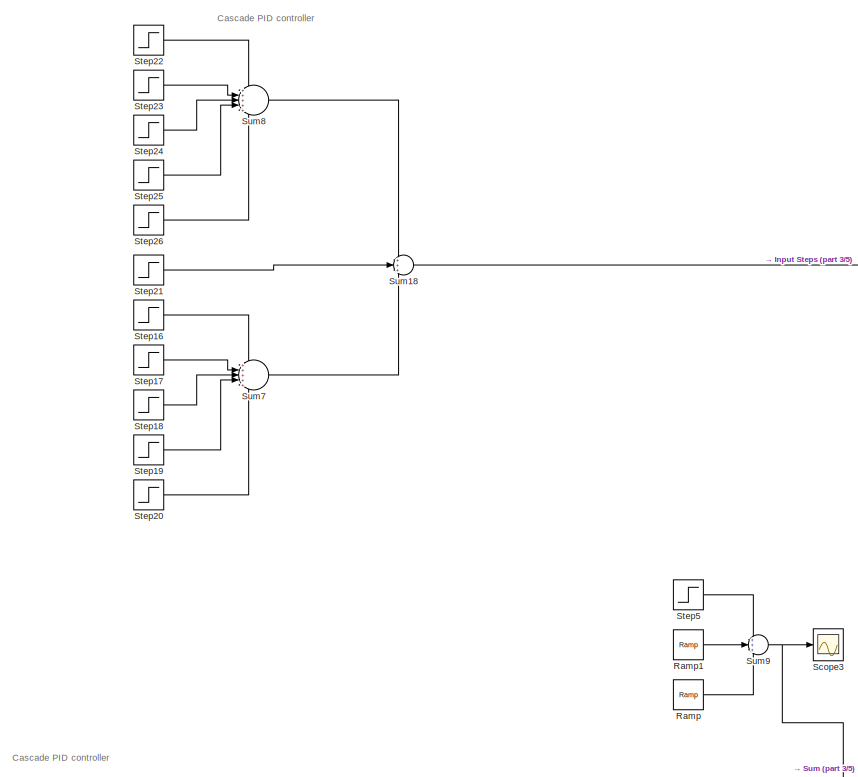
[diagram: root canvas - part 1/5, top left region]
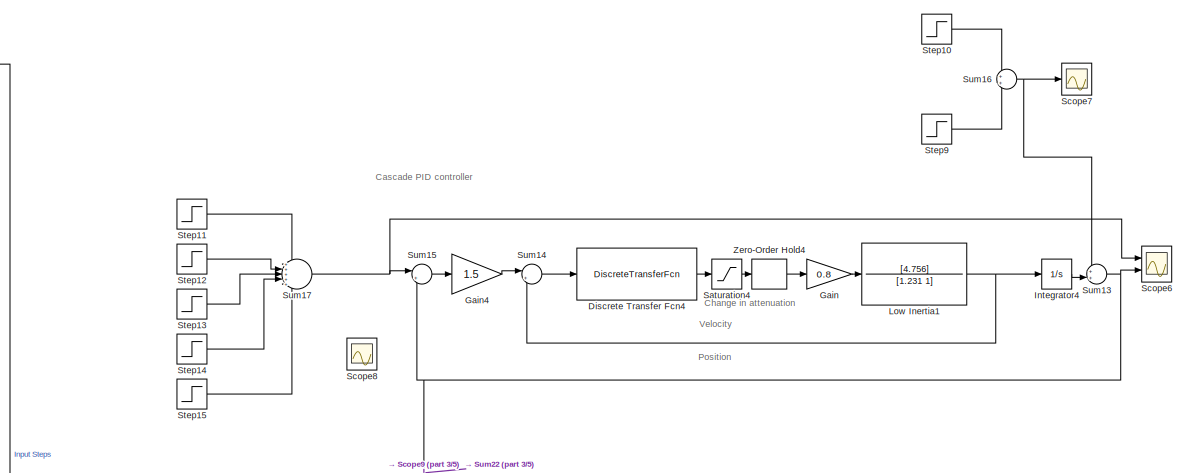
[diagram: root canvas - part 2/5, top right region]
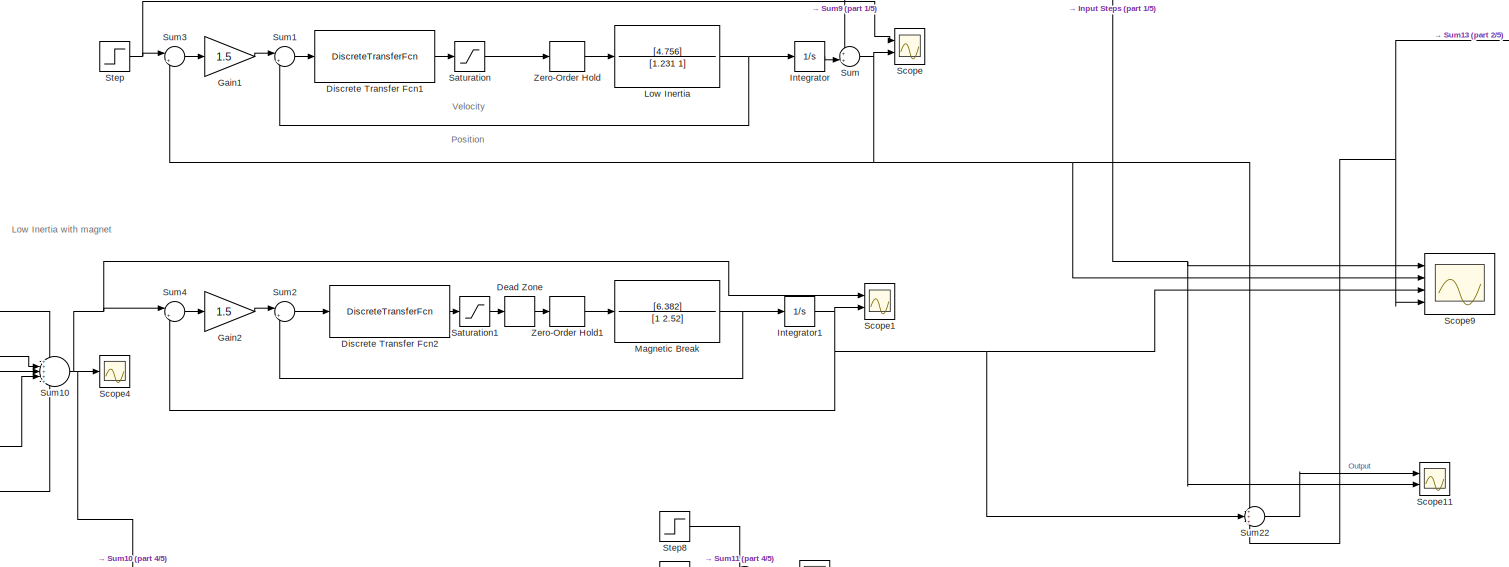
[diagram: root canvas - part 3/5, central region]
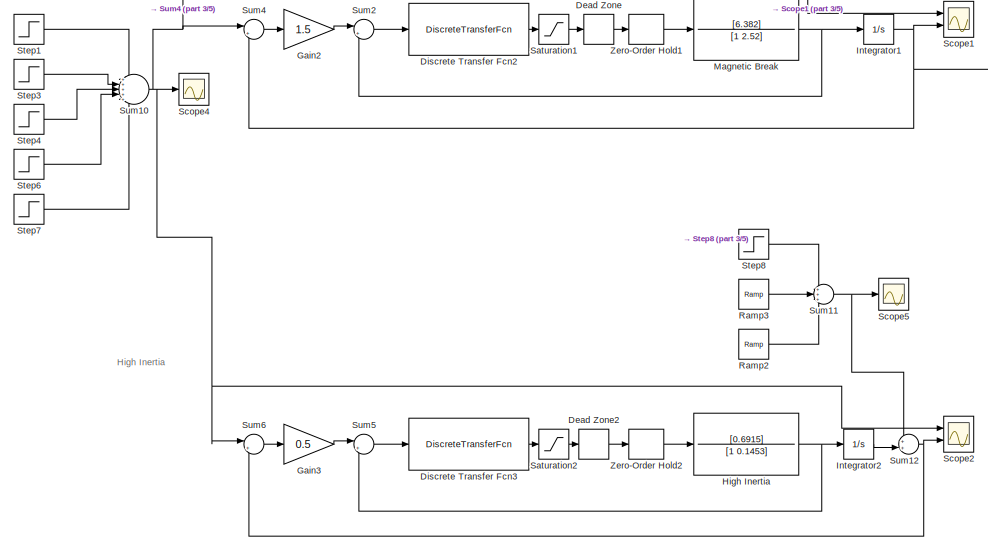
[diagram: root canvas - part 4/5, middle left region]
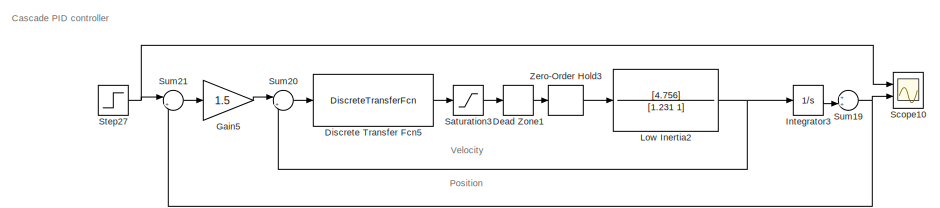
[diagram: root canvas - part 5/5, bottom left region]
MODEL slx_b5da8974d467
KIND model
CONFIG AbsTol = auto
CONFIG EnableMultiTasking = off
CONFIG FixedStep = auto
CONFIG MaxStep = auto
CONFIG MinStep = auto
CONFIG RelTol = 1e-3
CONFIG SampleTimeConstraint = Unconstrained
CONFIG SolverName = VariableStepAuto
CONFIG StartTime = 0.0
CONFIG StopTime = 70
BLOCK [DeadZone] Dead Zone
  LowerValue = -1.53
  UpperValue = 0.39
BLOCK [DeadZone] Dead Zone1
  LowerValue = -1.48
  UpperValue = 00.39
BLOCK [DeadZone] Dead Zone2
  LowerValue = -0.49
  UpperValue = 0.43
BLOCK [DiscreteTransferFcn] Discrete Transfer Fcn1
  Denominator = [1 -1]
  InputPortMap = u0
  Numerator = [2.002 -1.438]
  Ports = [1, 1]
  SampleTime = 0.05
BLOCK [DiscreteTransferFcn] Discrete Transfer Fcn2
  Denominator = [1 -1]
  InputPortMap = u0
  Numerator = [2.002 -1.438]
  Ports = [1, 1]
  SampleTime = 0.05
BLOCK [DiscreteTransferFcn] Discrete Transfer Fcn3
  Denominator = [1 -1]
  InputPortMap = u0
  Numerator = [2.002 -1.438]
  Ports = [1, 1]
  SampleTime = 0.05
BLOCK [DiscreteTransferFcn] Discrete Transfer Fcn4
  Denominator = [1 -1]
  InputPortMap = u0
  Numerator = [2.002 -1.438]
  Ports = [1, 1]
  SampleTime = 0.05
BLOCK [DiscreteTransferFcn] Discrete Transfer Fcn5
  Denominator = [1 -1]
  InputPortMap = u0
  Numerator = [2.002 -1.438]
  Ports = [1, 1]
  SampleTime = 0.05
BLOCK [Gain] Gain
  Gain = 0.8
BLOCK [Gain] Gain1
  Gain = 1.5
BLOCK [Gain] Gain2
  Gain = 1.5
BLOCK [Gain] Gain3
  Gain = 0.5
BLOCK [Gain] Gain4
  Gain = 1.5
BLOCK [Gain] Gain5
  Gain = 1.5
BLOCK [TransferFcn] High Inertia
  Denominator = [1 0.1453]
  Numerator = [0.6915]
BLOCK [Integrator] Integrator
  Ports = [1, 1]
BLOCK [Integrator] Integrator1
  Ports = [1, 1]
BLOCK [Integrator] Integrator2
  Ports = [1, 1]
BLOCK [Integrator] Integrator3
  Ports = [1, 1]
BLOCK [Integrator] Integrator4
  Ports = [1, 1]
BLOCK [TransferFcn] Low Inertia
  Denominator = [1.231 1]
  Numerator = [4.756]
BLOCK [TransferFcn] Low Inertia1
  Denominator = [1.231 1]
  Numerator = [4.756]
BLOCK [TransferFcn] Low Inertia2
  Denominator = [1.231 1]
  Numerator = [4.756]
BLOCK [TransferFcn] Magnetic Break
  Denominator = [1 2.52]
  Numerator = [6.382]
BLOCK [Reference] Ramp  REF=simulink/Sources/Ramp
  Ports = [0, 1]
  SourceBlock = simulink/Sources/Ramp
  SourceProductBaseCode = SL
  SourceType = Ramp
BLOCK [Reference] Ramp1  REF=simulink/Sources/Ramp
  Ports = [0, 1]
  SourceBlock = simulink/Sources/Ramp
  SourceProductBaseCode = SL
  SourceType = Ramp
BLOCK [Reference] Ramp2  REF=simulink/Sources/Ramp
  Ports = [0, 1]
  SourceBlock = simulink/Sources/Ramp
  SourceProductBaseCode = SL
  SourceType = Ramp
BLOCK [Reference] Ramp3  REF=simulink/Sources/Ramp
  Ports = [0, 1]
  SourceBlock = simulink/Sources/Ramp
  SourceProductBaseCode = SL
  SourceType = Ramp
BLOCK [Saturate] Saturation
  LowerLimit = -10
  UpperLimit = +10
BLOCK [Saturate] Saturation1
  LowerLimit = -10
  UpperLimit = +10
BLOCK [Saturate] Saturation2
  LowerLimit = -10
  UpperLimit = +10
BLOCK [Saturate] Saturation3
  LowerLimit = -10
  UpperLimit = +10
BLOCK [Saturate] Saturation4
  LowerLimit = -10
  UpperLimit = +10
BLOCK [Scope] Scope
  Floating = off
  NumInputPorts = 2
  Ports = [2]
  ScopeSpecificationString = Simulink.scopes.TimeScopeBlockCfg('CurrentConfiguration', extmgr.ConfigurationSet(extmgr.Configuration('Core','General UI',true),extmgr.Configuration('Core','Source UI',true),extmgr.Configuration('Sources','WiredSimulink',true),extmgr.Configuration('Visuals','Time Domain',true,'SerializedDisplays',{struct('MinYLimReal','-0.69004','MaxYLimReal','6.21038','YLabelReal','','MinYLimMag','0.00000','MaxY...<+1387ch>
BLOCK [Scope] Scope1
  Floating = off
  NumInputPorts = 2
  Ports = [2]
  ScopeSpecificationString = Simulink.scopes.TimeScopeBlockCfg('CurrentConfiguration', extmgr.ConfigurationSet(extmgr.Configuration('Core','General UI',true),extmgr.Configuration('Core','Source UI',true),extmgr.Configuration('Sources','WiredSimulink',true,'DataLoggingVariableName','ScopeData1'),extmgr.Configuration('Visuals','Time Domain',true,'SerializedDisplays',{struct('MinYLimReal','-0.625','MaxYLimReal','5.625','YLabelRe...<+1423ch>
BLOCK [Scope] Scope10
  Floating = off
  NumInputPorts = 2
  Ports = [2]
  ScopeSpecificationString = Simulink.scopes.TimeScopeBlockCfg('CurrentConfiguration', extmgr.ConfigurationSet(extmgr.Configuration('Core','General UI',true),extmgr.Configuration('Core','Source UI',true),extmgr.Configuration('Sources','WiredSimulink',true,'DataLoggingVariableName','ScopeData1'),extmgr.Configuration('Visuals','Time Domain',true,'SerializedDisplays',{struct('MinYLimReal','-0.62885','MaxYLimReal','5.65967','YLab...<+1430ch>
BLOCK [Scope] Scope11
  Floating = off
  NumInputPorts = 2
  Ports = [2]
  ScopeSpecificationString = Simulink.scopes.TimeScopeBlockCfg('CurrentConfiguration', extmgr.ConfigurationSet(extmgr.Configuration('Core','General UI',true,'FigureColor',[1 1 1]),extmgr.Configuration('Core','Source UI',true),extmgr.Configuration('Sources','WiredSimulink',true,'DataLoggingVariableName','ScopeData1'),extmgr.Configuration('Visuals','Time Domain',true,'SerializedDisplays',{struct('MinYLimReal','-7.175','MaxYLimR...<+1704ch>
BLOCK [Scope] Scope2
  Floating = off
  NumInputPorts = 2
  Ports = [2]
  ScopeSpecificationString = Simulink.scopes.TimeScopeBlockCfg('CurrentConfiguration', extmgr.ConfigurationSet(extmgr.Configuration('Core','General UI',true),extmgr.Configuration('Core','Source UI',true),extmgr.Configuration('Sources','WiredSimulink',true,'DataLoggingVariableName','ScopeData2'),extmgr.Configuration('Visuals','Time Domain',true,'SerializedDisplays',{struct('MinYLimReal','-12.17513','MaxYLimReal','3.57501','YLa...<+1429ch>
BLOCK [Scope] Scope3
  Floating = off
  NumInputPorts = 1
  Ports = [1]
  ScopeSpecificationString = Simulink.scopes.TimeScopeBlockCfg('CurrentConfiguration', extmgr.ConfigurationSet(extmgr.Configuration('Core','General UI',true),extmgr.Configuration('Core','Source UI',true),extmgr.Configuration('Sources','WiredSimulink',true,'DataLoggingVariableName','ScopeData1'),extmgr.Configuration('Visuals','Time Domain',true,'SerializedDisplays',{struct('MinYLimReal','-1.00000','MaxYLimReal','1.00000','YLab...<+1393ch>
BLOCK [Scope] Scope4
  Floating = off
  NumInputPorts = 1
  Ports = [1]
  ScopeSpecificationString = Simulink.scopes.TimeScopeBlockCfg('CurrentConfiguration', extmgr.ConfigurationSet(extmgr.Configuration('Core','General UI',true),extmgr.Configuration('Core','Source UI',true),extmgr.Configuration('Sources','WiredSimulink',true,'DataLoggingVariableName','ScopeData2'),extmgr.Configuration('Visuals','Time Domain',true,'SerializedDisplays',{struct('MinYLimReal','-12.175','MaxYLimReal','3.575','YLabelR...<+1385ch>
BLOCK [Scope] Scope5
  Floating = off
  NumInputPorts = 1
  Ports = [1]
  ScopeSpecificationString = Simulink.scopes.TimeScopeBlockCfg('CurrentConfiguration', extmgr.ConfigurationSet(extmgr.Configuration('Core','General UI',true),extmgr.Configuration('Core','Source UI',true),extmgr.Configuration('Sources','WiredSimulink',true,'DataLoggingVariableName','ScopeData3'),extmgr.Configuration('Visuals','Time Domain',true,'SerializedDisplays',{struct('MinYLimReal','-0.25','MaxYLimReal','2.25','YLabelReal...<+1375ch>
BLOCK [Scope] Scope6
  Floating = off
  NumInputPorts = 2
  Ports = [2]
  ScopeSpecificationString = Simulink.scopes.TimeScopeBlockCfg('CurrentConfiguration', extmgr.ConfigurationSet(extmgr.Configuration('Core','General UI',true),extmgr.Configuration('Core','Source UI',true),extmgr.Configuration('Sources','WiredSimulink',true,'DataLoggingVariableName','ScopeData1'),extmgr.Configuration('Visuals','Time Domain',true,'SerializedDisplays',{struct('MinYLimReal','-6.925','MaxYLimReal','6.325','YLabelRe...<+1436ch>
BLOCK [Scope] Scope7
  Floating = off
  NumInputPorts = 1
  Ports = [1]
  ScopeSpecificationString = Simulink.scopes.TimeScopeBlockCfg('CurrentConfiguration', extmgr.ConfigurationSet(extmgr.Configuration('Core','General UI',true),extmgr.Configuration('Core','Source UI',true),extmgr.Configuration('Sources','WiredSimulink',true,'DataLoggingVariableName','ScopeData2'),extmgr.Configuration('Visuals','Time Domain',true,'SerializedDisplays',{struct('MinYLimReal','-0.1','MaxYLimReal','0.9','YLabelReal',...<+1370ch>
BLOCK [Scope] Scope8
  Floating = off
  NumInputPorts = 1
  Ports = [1]
  ScopeSpecificationString = Simulink.scopes.TimeScopeBlockCfg('CurrentConfiguration', extmgr.ConfigurationSet(extmgr.Configuration('Core','General UI',true),extmgr.Configuration('Core','Source UI',true),extmgr.Configuration('Sources','WiredSimulink',true,'DataLoggingVariableName','ScopeData3'),extmgr.Configuration('Visuals','Time Domain',true,'SerializedDisplays',{struct('MinYLimReal','-1.00000','MaxYLimReal','1.00000','YLab...<+1403ch>
BLOCK [Scope] Scope9
  Floating = off
  NumInputPorts = 4
  Ports = [4]
  ScopeSpecificationString = Simulink.scopes.TimeScopeBlockCfg('CurrentConfiguration', extmgr.ConfigurationSet(extmgr.Configuration('Core','General UI',true),extmgr.Configuration('Core','Source UI',true),extmgr.Configuration('Sources','WiredSimulink',true,'DataLoggingVariableName','ScopeData4'),extmgr.Configuration('Visuals','Time Domain',true,'SerializedDisplays',{struct('MinYLimReal','-13.25','MaxYLimReal','13.25','YLabelRe...<+1418ch>
BLOCK [Step] Step
  After = 5
  SampleTime = 0
  Time = 5
BLOCK [Step] Step1
  After = 2
  SampleTime = 0
  Time = 32.9
BLOCK [Step] Step10
  After = 0.8
  SampleTime = 0
  Time = 49
BLOCK [Step] Step11
  SampleTime = 0
  Time = 46
BLOCK [Step] Step12
  After = 2.2
  SampleTime = 0
  Time = 51.5
BLOCK [Step] Step13
  After = 2.8
  SampleTime = 0
  Time = 53
BLOCK [Step] Step14
  After = 3
  SampleTime = 0
  Time = 54
BLOCK [Step] Step15
  After = 1.6
  SampleTime = 0
  Time = 59
BLOCK [Step] Step16
  After = 2
  SampleTime = 0
  Time = 32.9
BLOCK [Step] Step17
  After = -3.2
  SampleTime = 0
  Time = 35
BLOCK [Step] Step18
  After = -2.6
  SampleTime = 0
  Time = 36.5
BLOCK [Step] Step19
  After = -2.8
  SampleTime = 0
  Time = 39
BLOCK [Step] Step20
  After = -4
  SampleTime = 0
  Time = 40
BLOCK [Step] Step21
  After = 5
  SampleTime = 0
  Time = 5
BLOCK [Step] Step22
  SampleTime = 0
  Time = 46
BLOCK [Step] Step23
  After = 2.2
  SampleTime = 0
  Time = 51.5
BLOCK [Step] Step24
  After = 2.8
  SampleTime = 0
  Time = 53
BLOCK [Step] Step25
  After = 3
  SampleTime = 0
  Time = 54
BLOCK [Step] Step26
  After = 1.6
  SampleTime = 0
  Time = 59
BLOCK [Step] Step27
  After = 5
  SampleTime = 0
  Time = 5
BLOCK [Step] Step3
  After = -3.2
  SampleTime = 0
  Time = 35
BLOCK [Step] Step4
  After = -2.6
  SampleTime = 0
  Time = 36.5
BLOCK [Step] Step5
  After = -2
  SampleTime = 0
  Time = 15
BLOCK [Step] Step6
  After = -2.8
  SampleTime = 0
  Time = 39
BLOCK [Step] Step7
  After = -4
  SampleTime = 0
  Time = 40
BLOCK [Step] Step8
  After = -2
  SampleTime = 0
  Time = 15
BLOCK [Step] Step9
  After = -0.8
  SampleTime = 0
  Time = 49.1
BLOCK [Sum] Sum
  Inputs = ++|
  Ports = [2, 1]
BLOCK [Sum] Sum1
  Inputs = |+-
  Ports = [2, 1]
BLOCK [Sum] Sum10
  Inputs = +++++
  Ports = [5, 1]
BLOCK [Sum] Sum11
  Inputs = +++
  Ports = [3, 1]
BLOCK [Sum] Sum12
  Inputs = ++|
  Ports = [2, 1]
BLOCK [Sum] Sum13
  Inputs = ++|
  Ports = [2, 1]
BLOCK [Sum] Sum14
  Inputs = |+-
  Ports = [2, 1]
BLOCK [Sum] Sum15
  Inputs = |+-
  Ports = [2, 1]
BLOCK [Sum] Sum16
  Ports = [2, 1]
BLOCK [Sum] Sum17
  Inputs = +++++
  Ports = [5, 1]
BLOCK [Sum] Sum18
  Inputs = +++
  Ports = [3, 1]
BLOCK [Sum] Sum19
  Inputs = ++|
  Ports = [2, 1]
BLOCK [Sum] Sum2
  Inputs = |+-
  Ports = [2, 1]
BLOCK [Sum] Sum20
  Inputs = |+-
  Ports = [2, 1]
BLOCK [Sum] Sum21
  Inputs = |+-
  Ports = [2, 1]
BLOCK [Sum] Sum22
  Inputs = +++
  Ports = [3, 1]
BLOCK [Sum] Sum3
  Inputs = |+-
  Ports = [2, 1]
BLOCK [Sum] Sum4
  Inputs = |+-
  Ports = [2, 1]
BLOCK [Sum] Sum5
  Inputs = |+-
  Ports = [2, 1]
BLOCK [Sum] Sum6
  Inputs = |+-
  Ports = [2, 1]
BLOCK [Sum] Sum7
  Inputs = +++++
  Ports = [5, 1]
BLOCK [Sum] Sum8
  Inputs = +++++
  Ports = [5, 1]
BLOCK [Sum] Sum9
  Inputs = +++
  Ports = [3, 1]
BLOCK [ZeroOrderHold] Zero-Order Hold
  SampleTime = 0.05
BLOCK [ZeroOrderHold] Zero-Order Hold1
  SampleTime = 0.05
BLOCK [ZeroOrderHold] Zero-Order Hold2
  SampleTime = 0.02
BLOCK [ZeroOrderHold] Zero-Order Hold3
  SampleTime = 0.05
BLOCK [ZeroOrderHold] Zero-Order Hold4
  SampleTime = 0.05
ANNOTATION (root): Cascade PID controller
ANNOTATION (root): Change in attenuation
ANNOTATION (root): High Inertia
ANNOTATION (root): Low Inertia with magnet
ANNOTATION (root): Position
ANNOTATION (root): Velocity
LINE Dead Zone1:1 -> Zero-Order Hold3:1
LINE Dead Zone2:1 -> Zero-Order Hold2:1
LINE Dead Zone:1 -> Zero-Order Hold1:1
LINE Discrete Transfer Fcn1:1 -> Saturation:1
LINE Discrete Transfer Fcn2:1 -> Saturation1:1
LINE Discrete Transfer Fcn3:1 -> Saturation2:1
LINE Discrete Transfer Fcn4:1 -> Saturation4:1
LINE Discrete Transfer Fcn5:1 -> Saturation3:1
LINE Gain1:1 -> Sum1:1
LINE Gain2:1 -> Sum2:1
LINE Gain3:1 -> Sum5:1
LINE Gain4:1 -> Sum14:1
LINE Gain5:1 -> Sum20:1
LINE Gain:1 -> Low Inertia1:1
NET High Inertia:1 -> Integrator2:1, Sum5:2
NET Integrator1:1 -> Scope1:2, Scope9:3, Sum22:2, Sum4:2
LINE Integrator2:1 -> Sum12:2
LINE Integrator3:1 -> Sum19:2
LINE Integrator4:1 -> Sum13:2
LINE Integrator:1 -> Sum:2
NET Low Inertia1:1 -> Integrator4:1, Sum14:2
NET Low Inertia2:1 -> Integrator3:1, Sum20:2
NET Low Inertia:1 -> Integrator:1, Sum1:2
NET Magnetic Break:1 -> Integrator1:1, Sum2:2
LINE Ramp1:1 -> Sum9:2
LINE Ramp2:1 -> Sum11:3
LINE Ramp3:1 -> Sum11:2
LINE Ramp:1 -> Sum9:3
LINE Saturation1:1 -> Dead Zone:1
LINE Saturation2:1 -> Dead Zone2:1
LINE Saturation3:1 -> Dead Zone1:1
LINE Saturation4:1 -> Zero-Order Hold4:1
LINE Saturation:1 -> Zero-Order Hold:1
LINE Step10:1 -> Sum16:1
LINE Step11:1 -> Sum17:1
LINE Step12:1 -> Sum17:2
LINE Step13:1 -> Sum17:3
LINE Step14:1 -> Sum17:4
LINE Step15:1 -> Sum17:5
LINE Step16:1 -> Sum7:1
LINE Step17:1 -> Sum7:2
LINE Step18:1 -> Sum7:3
LINE Step19:1 -> Sum7:4
LINE Step1:1 -> Sum10:1
LINE Step20:1 -> Sum7:5
LINE Step21:1 -> Sum18:2
LINE Step22:1 -> Sum8:1
LINE Step23:1 -> Sum8:2
LINE Step24:1 -> Sum8:3
LINE Step25:1 -> Sum8:4
LINE Step26:1 -> Sum8:5
NET Step27:1 -> Scope10:1, Sum21:1
LINE Step3:1 -> Sum10:2
LINE Step4:1 -> Sum10:3
LINE Step5:1 -> Sum9:1
LINE Step6:1 -> Sum10:4
LINE Step7:1 -> Sum10:5
LINE Step8:1 -> Sum11:1
LINE Step9:1 -> Sum16:2
NET Step:1 -> Scope:1, Sum3:1
NET Sum10:1 -> Scope1:1, Scope2:1, Scope4:1, Sum4:1, Sum6:1
NET Sum11:1 -> Scope5:1, Sum12:1
NET Sum12:1 -> Scope2:2, Sum6:2
NET Sum13:1 -> Scope6:2, Scope9:4, Sum15:2, Sum22:3
LINE Sum14:1 -> Discrete Transfer Fcn4:1
LINE Sum15:1 -> Gain4:1
NET Sum16:1 -> Scope7:1, Sum13:1
NET Sum17:1 -> Scope6:1, Sum15:1
NET Sum18:1 -> Scope11:2, Scope9:1
NET Sum19:1 -> Scope10:2, Sum21:2
LINE Sum1:1 -> Discrete Transfer Fcn1:1
LINE Sum20:1 -> Discrete Transfer Fcn5:1
LINE Sum21:1 -> Gain5:1
LINE Sum22:1 -> Scope11:1
LINE Sum2:1 -> Discrete Transfer Fcn2:1
LINE Sum3:1 -> Gain1:1
LINE Sum4:1 -> Gain2:1
LINE Sum5:1 -> Discrete Transfer Fcn3:1
LINE Sum6:1 -> Gain3:1
LINE Sum7:1 -> Sum18:3
LINE Sum8:1 -> Sum18:1
NET Sum9:1 -> Scope3:1, Sum:1
NET Sum:1 -> Scope9:2, Scope:2, Sum22:1, Sum3:2
LINE Zero-Order Hold1:1 -> Magnetic Break:1
LINE Zero-Order Hold2:1 -> High Inertia:1
LINE Zero-Order Hold3:1 -> Low Inertia2:1
LINE Zero-Order Hold4:1 -> Gain:1
LINE Zero-Order Hold:1 -> Low Inertia:1
note: NET lines group one-source signal fan-out (src -> all destinations, sorted); 1:1 wires keep LINE
